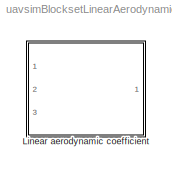
MODEL uavsimBlocksetLinearAerodynamicCoefficient
KIND library
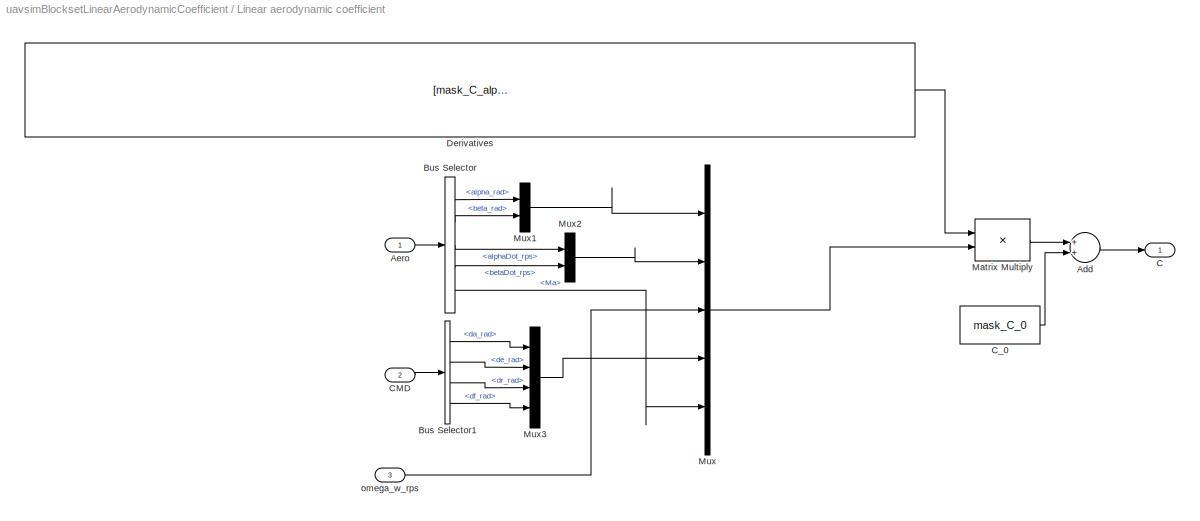
BLOCK [SubSystem] Linear aerodynamic coefficient
  FunctionWithSeparateData = off
  MaskHideContents = off
  MinAlgLoopOccurrences = off
  Opaque = off
  Ports = [3, 1]
  PropExecContextOutsideSubsystem = off
  RTWSystemCode = Auto
  RequestExecContextInheritance = off
  SID = 4082
BLOCK [Sum] Linear aerodynamic coefficient/Add
  InputSameDT = off
  OutDataTypeStr = Inherit: Inherit via internal rule
  Ports = [2, 1]
  SID = 4165
  SaturateOnIntegerOverflow = off
BLOCK [Inport] Linear aerodynamic coefficient/Aero
  IconDisplay = Port number
  OutDataTypeStr = Bus: Aero
  SID = 4187
BLOCK [BusSelector] Linear aerodynamic coefficient/Bus Selector
  OutputSignals = alpha_rad,beta_rad,alphaDot_rps,betaDot_rps,Ma
  Ports = [1, 5]
  SID = 4191
BLOCK [BusSelector] Linear aerodynamic coefficient/Bus Selector1
  OutputSignals = da_rad,de_rad,dr_rad,df_rad
  Ports = [1, 4]
  SID = 4195
BLOCK [Outport] Linear aerodynamic coefficient/C
  IconDisplay = Port number
  SID = 4084
BLOCK [Inport] Linear aerodynamic coefficient/CMD
  IconDisplay = Port number
  OutDataTypeStr = Bus: CMD
  Port = 2
  SID = 4188
BLOCK [Constant] Linear aerodynamic coefficient/C_0
  SID = 4166
  Value = mask_C_0
BLOCK [Constant] Linear aerodynamic coefficient/Derivatives
  SID = 4089
  Value = [mask_C_alpha mask_C_beta mask_C_alphaDot mask_C_betaDot mask_C_p mask_C_q mask_C_r mask_C_delta_a mask_C_delta_e mask_C_delta_r mask_C_delta_f mask_C_Mach]
  VectorParams1D = off
BLOCK [Product] Linear aerodynamic coefficient/Matrix Multiply
  InputSameDT = off
  Multiplication = Matrix(*)
  OutDataTypeStr = Inherit: Inherit via internal rule
  Ports = [2, 1]
  RndMeth = Floor
  SID = 4090
  SaturateOnIntegerOverflow = off
BLOCK [Mux] Linear aerodynamic coefficient/Mux
  DisplayOption = bar
  Inputs = 5
  Ports = [5, 1]
  SID = 4088
BLOCK [Mux] Linear aerodynamic coefficient/Mux1
  DisplayOption = bar
  Inputs = 2
  Ports = [2, 1]
  SID = 4192
BLOCK [Mux] Linear aerodynamic coefficient/Mux2
  DisplayOption = bar
  Inputs = 2
  Ports = [2, 1]
  SID = 4193
BLOCK [Mux] Linear aerodynamic coefficient/Mux3
  DisplayOption = bar
  Ports = [4, 1]
  SID = 4194
BLOCK [Inport] Linear aerodynamic coefficient/omega_w_rps
  IconDisplay = Port number
  Port = 3
  SID = 4189
LINE Linear aerodynamic coefficient/Add:1 -> Linear aerodynamic coefficient/C:1
LINE Linear aerodynamic coefficient/Aero:1 -> Linear aerodynamic coefficient/Bus Selector:1
LINE Linear aerodynamic coefficient/Bus Selector1:1 -> Linear aerodynamic coefficient/Mux3:1
LINE Linear aerodynamic coefficient/Bus Selector1:2 -> Linear aerodynamic coefficient/Mux3:2
LINE Linear aerodynamic coefficient/Bus Selector1:3 -> Linear aerodynamic coefficient/Mux3:3
LINE Linear aerodynamic coefficient/Bus Selector1:4 -> Linear aerodynamic coefficient/Mux3:4
LINE Linear aerodynamic coefficient/Bus Selector:1 -> Linear aerodynamic coefficient/Mux1:1
LINE Linear aerodynamic coefficient/Bus Selector:2 -> Linear aerodynamic coefficient/Mux1:2
LINE Linear aerodynamic coefficient/Bus Selector:3 -> Linear aerodynamic coefficient/Mux2:1
LINE Linear aerodynamic coefficient/Bus Selector:4 -> Linear aerodynamic coefficient/Mux2:2
LINE Linear aerodynamic coefficient/Bus Selector:5 -> Linear aerodynamic coefficient/Mux:5
LINE Linear aerodynamic coefficient/CMD:1 -> Linear aerodynamic coefficient/Bus Selector1:1
LINE Linear aerodynamic coefficient/C_0:1 -> Linear aerodynamic coefficient/Add:2
LINE Linear aerodynamic coefficient/Derivatives:1 -> Linear aerodynamic coefficient/Matrix Multiply:1
LINE Linear aerodynamic coefficient/Matrix Multiply:1 -> Linear aerodynamic coefficient/Add:1
LINE Linear aerodynamic coefficient/Mux1:1 -> Linear aerodynamic coefficient/Mux:1
LINE Linear aerodynamic coefficient/Mux2:1 -> Linear aerodynamic coefficient/Mux:2
LINE Linear aerodynamic coefficient/Mux3:1 -> Linear aerodynamic coefficient/Mux:4
LINE Linear aerodynamic coefficient/Mux:1 -> Linear aerodynamic coefficient/Matrix Multiply:2
LINE Linear aerodynamic coefficient/omega_w_rps:1 -> Linear aerodynamic coefficient/Mux:3
